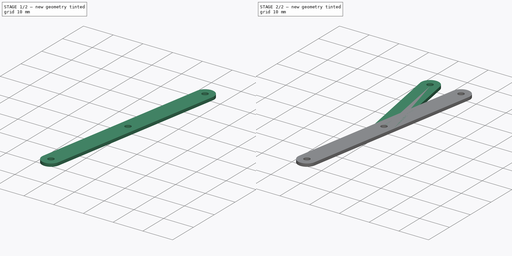
[diagram: build sequence overview — one tinted view per stage of 2, left to right]
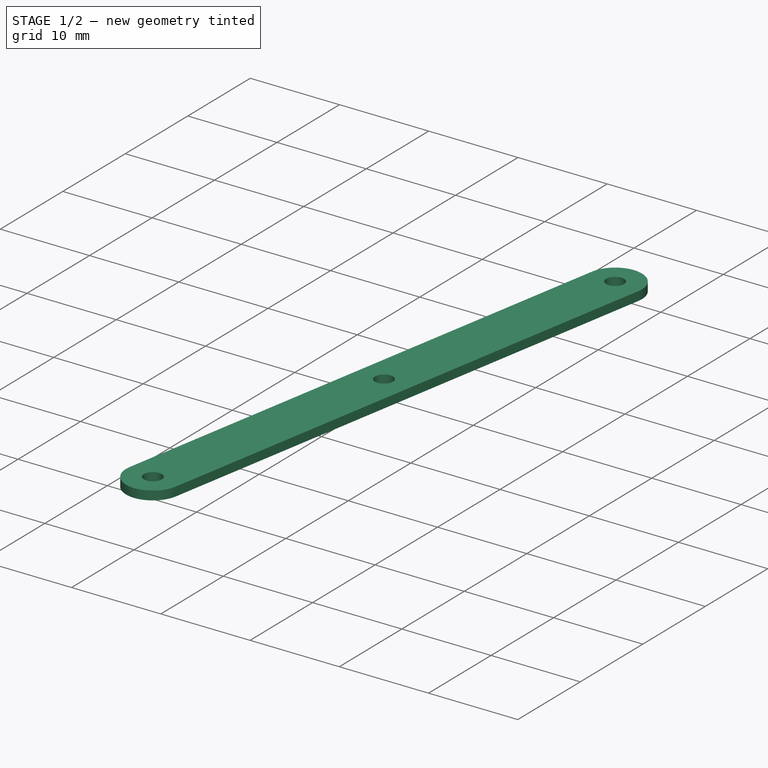
[diagram: stage 1 of 2 — iso view after this stage's code; geometry added in this stage tinted green]
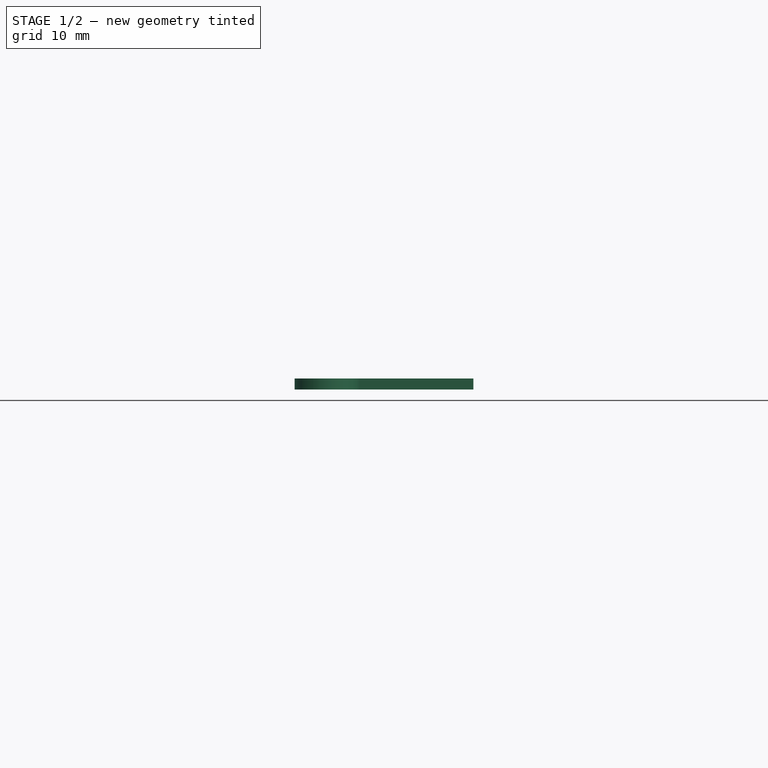
[diagram: stage 1 of 2 — front view after this stage's code; geometry added in this stage tinted green]
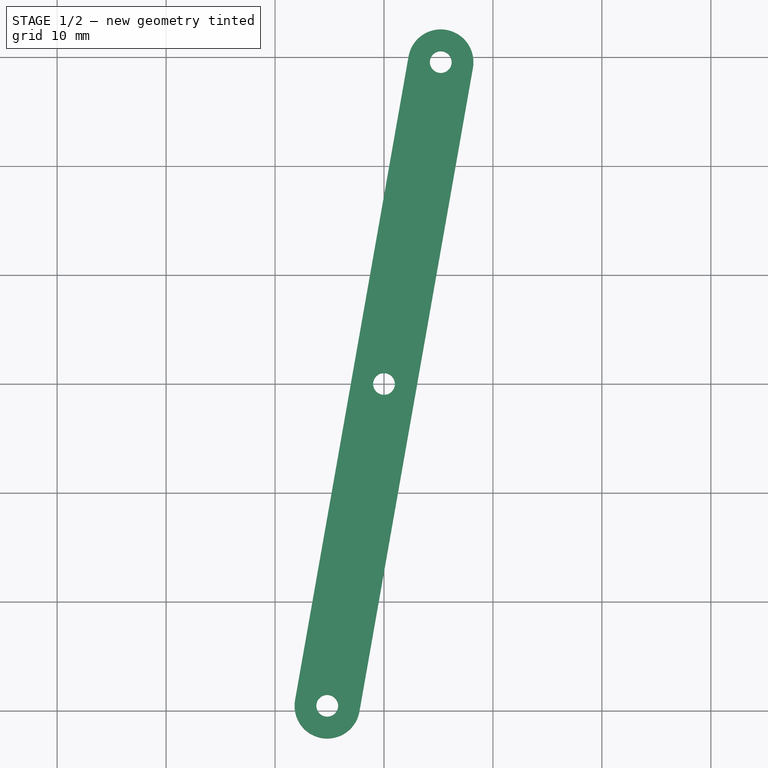
[diagram: stage 1 of 2 — top view after this stage's code; geometry added in this stage tinted green]
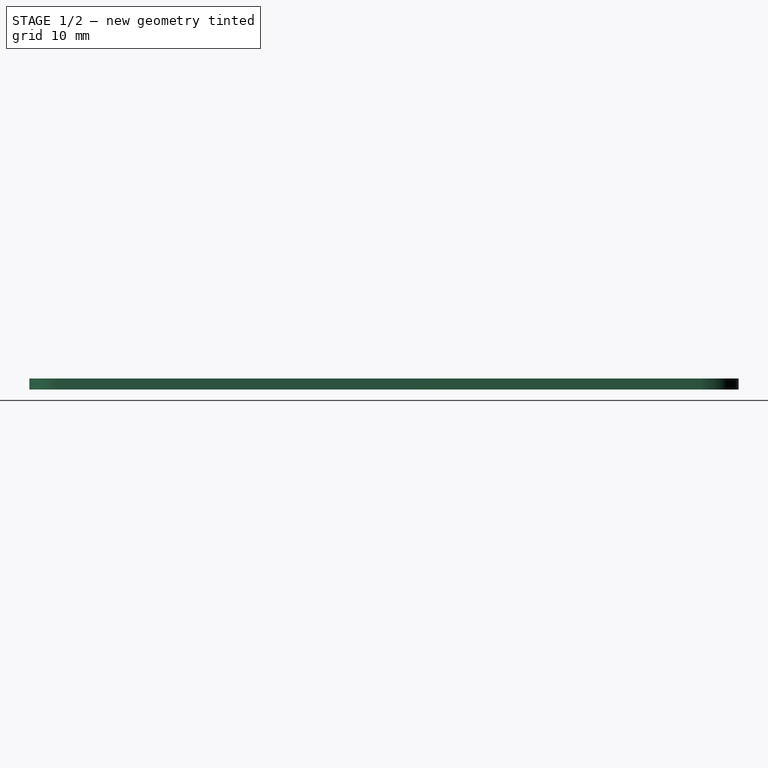
[diagram: stage 1 of 2 — right view after this stage's code; geometry added in this stage tinted green]
FCSTD DOCUMENT  (FreeCAD 0.19R24276 (Git))
Label: Assambly_file_3
License: All rights reserved
LicenseURL: http://en.wikipedia.org/wiki/All_rights_reserved
objects: PartDesign::CoordinateSystem×6, App::DocumentObjectGroup×3, Sketcher::SketchObject×2, PartDesign::Pad×2, PartDesign::Body×2, App::Link×2, App::FeaturePython×1, App::Part×1
note: 14 computed .brp shape members not serialized (recipe doc carries the construction recipe); baked Part::Feature solids carry a one-line shape summary decoded from their .brp

FEATURE [PartDesign::CoordinateSystem] LCS_Origin
  AttacherType = Attacher::AttachEngine3D
  MapMode = 2
  Support = -> [X_Axis]
FEATURE [App::FeaturePython] Variables  # WARN: FeaturePython — macro-defined, semantics opaque (R4)
  Type = App::PropertyContainer
  move = 38
FEATURE [App::DocumentObjectGroup] Constraints
FEATURE [App::DocumentObjectGroup] Configurations
FEATURE [Sketcher::SketchObject] Sketch
  FullyConstrained = true
  sketch-geometry (9):
    g0: ArcOfCircle CenterX=5.20945 CenterY=29.5442 CenterZ=0 NormalX=0 NormalY=0 NormalZ=1 AngleXU=0 Radius=3 StartAngle=6.10865 EndAngle=9.25025
    g1: ArcOfCircle CenterX=-5.20945 CenterY=-29.5442 CenterZ=0 NormalX=0 NormalY=0 NormalZ=1 AngleXU=0 Radius=3 StartAngle=2.96706 EndAngle=6.10865
    g2: LineSegment StartX=2.25502 StartY=30.0652 StartZ=0 EndX=-8.16387 EndY=-29.0233 EndZ=0
    g3: LineSegment StartX=8.16387 StartY=29.0233 StartZ=0 EndX=-2.25502 EndY=-30.0652 EndZ=0
    g4: LineSegment StartX=5.20945 StartY=29.5442 StartZ=0 EndX=-5.20945 EndY=-29.5442 EndZ=0
    g5: Circle CenterX=5.20945 CenterY=29.5442 CenterZ=0 NormalX=0 NormalY=0 NormalZ=1 AngleXU=0 Radius=1
    g6: Circle CenterX=-5.20945 CenterY=-29.5442 CenterZ=0 NormalX=0 NormalY=0 NormalZ=1 AngleXU=0 Radius=5e-16
    g7: Circle CenterX=0 CenterY=0 CenterZ=0 NormalX=0 NormalY=0 NormalZ=1 AngleXU=0 Radius=1
    g8: Circle CenterX=-5.20945 CenterY=-29.5442 CenterZ=0 NormalX=0 NormalY=0 NormalZ=1 AngleXU=0 Radius=1
  constraints (19):
    c: Tangent(g0,g3) = 1.5708
    c: Tangent(g0,g2) = -1.5708
    c: Tangent(g2,g1) = -1.5708
    c: Tangent(g3,g1) = 1.5708
    c: Equal(g0,g1)
    c: Coincident(g4,g0)
    c: Coincident(g4,g1)
    c: Coincident(g5,g0)
    c: Coincident(g6,g1)
    c: Tangent(g6,g4)
    c: Coincident(g8,g1)
    c: Symmetric(g0,g1,g7)
    c: Radius(g5) = 1
    c: Equal(g5,g7)
    c: Equal(g5,g8)
    c: Distance(g4) = 60
    c: Radius(g1) = 3
    c: Coincident(g7,g-1)
    c: Angle(g-2,g4) = -0.174533
FEATURE [PartDesign::Pad] Pad
  Direction = (1,1,1)
  Length = 1
  Length2 = 100
  Profile = -> Sketch
  Type = 0
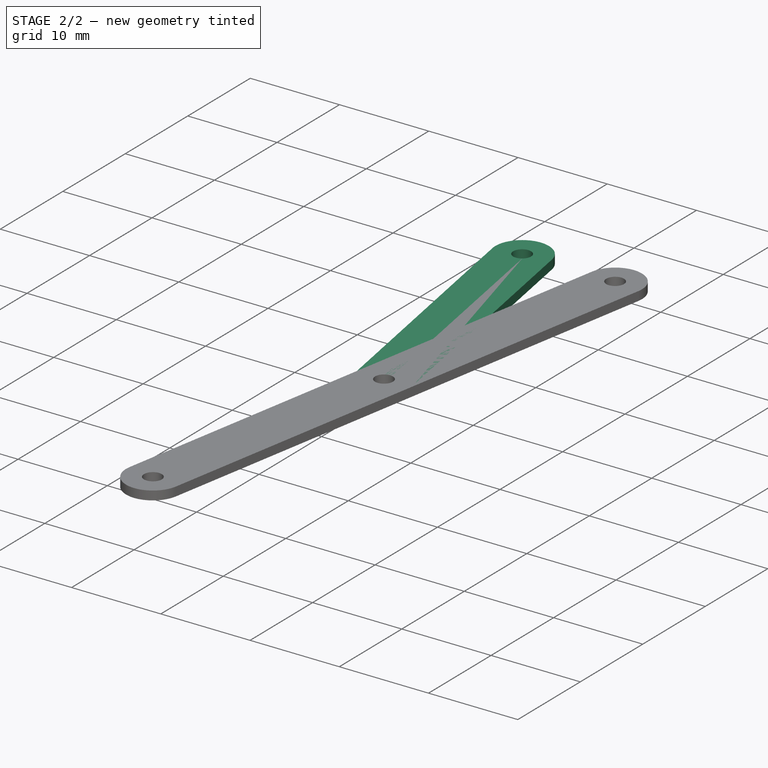
[diagram: stage 2 of 2 — iso view after this stage's code; geometry added in this stage tinted green]
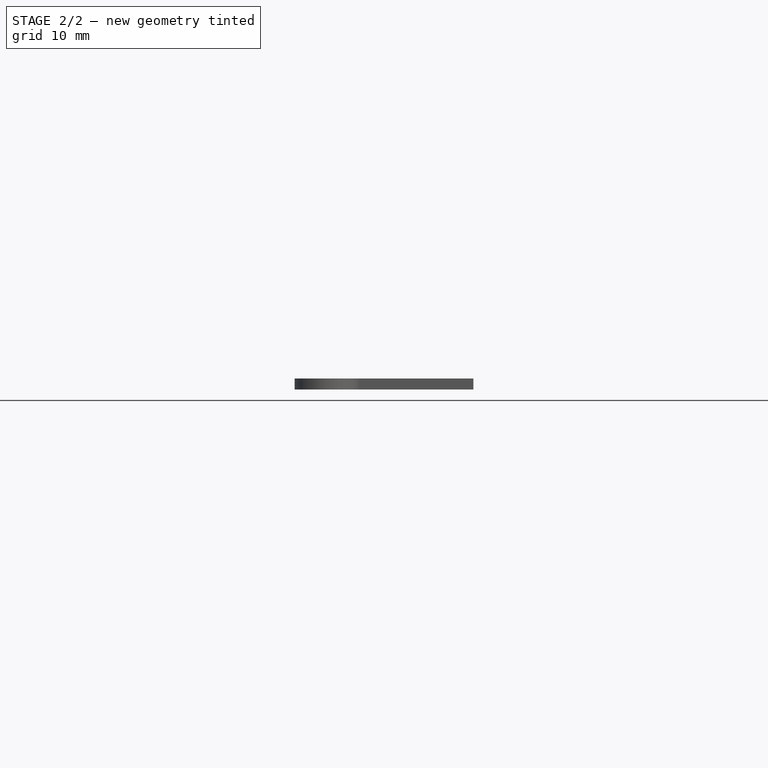
[diagram: stage 2 of 2 — front view after this stage's code; geometry added in this stage tinted green]
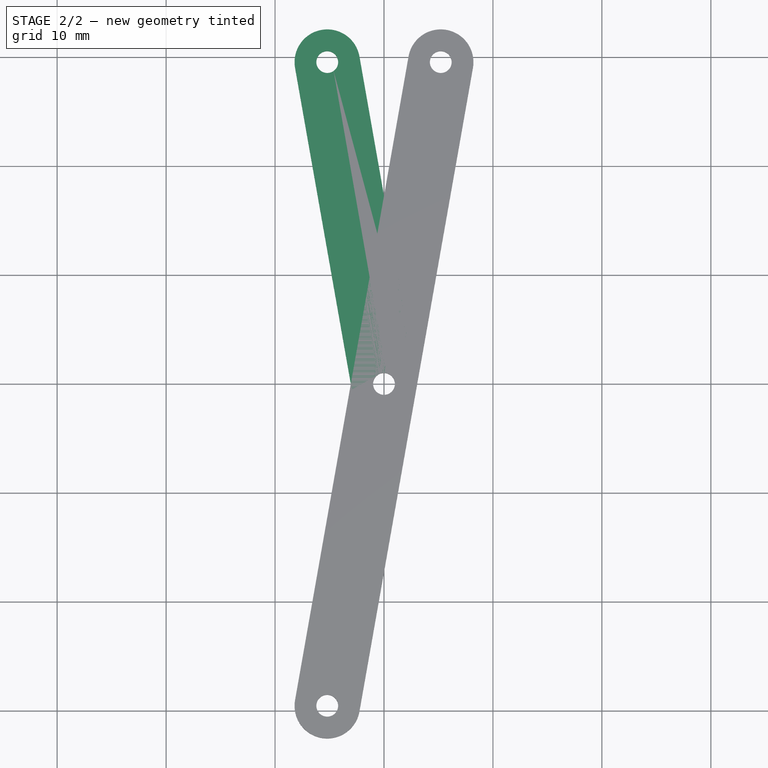
[diagram: stage 2 of 2 — top view after this stage's code; geometry added in this stage tinted green]
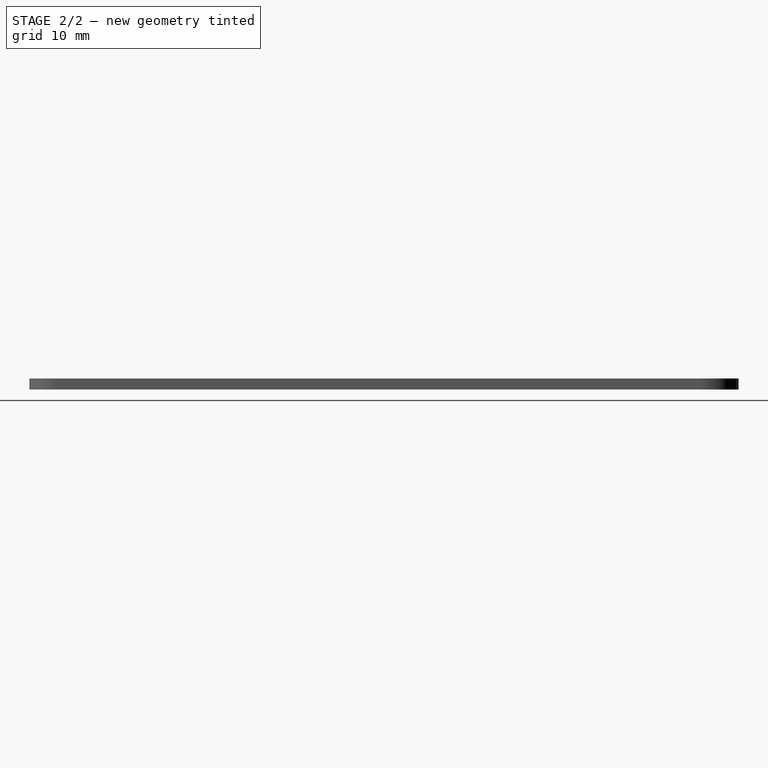
[diagram: stage 2 of 2 — right view after this stage's code; geometry added in this stage tinted green]
FEATURE [Sketcher::SketchObject] Sketch001
  FullyConstrained = true
  MapMode = 5
  Support = -> [XY_Plane002]
  sketch-geometry (7):
    g0: ArcOfCircle CenterX=-5.20945 CenterY=29.5442 CenterZ=0 NormalX=0 NormalY=0 NormalZ=1 AngleXU=0 Radius=3 StartAngle=0.174533 EndAngle=3.31613
    g1: ArcOfCircle CenterX=0 CenterY=0 CenterZ=0 NormalX=0 NormalY=0 NormalZ=1 AngleXU=0 Radius=3 StartAngle=3.31613 EndAngle=6.45772
    g2: LineSegment StartX=-8.16387 StartY=29.0233 StartZ=0 EndX=-2.95442 EndY=-0.520945 EndZ=0
    g3: LineSegment StartX=-2.25502 StartY=30.0652 StartZ=0 EndX=2.95442 EndY=0.520945 EndZ=0
    g4: Circle CenterX=-5.20945 CenterY=29.5442 CenterZ=0 NormalX=0 NormalY=0 NormalZ=1 AngleXU=0 Radius=1
    g5: Circle CenterX=0 CenterY=0 CenterZ=0 NormalX=0 NormalY=0 NormalZ=1 AngleXU=0 Radius=1
    g6: LineSegment StartX=-5.20945 StartY=29.5442 StartZ=0 EndX=0 EndY=0 EndZ=0
  constraints (15):
    c: Tangent(g0,g3) = 1.5708
    c: Tangent(g0,g2) = -1.5708
    c: Tangent(g2,g1) = -1.5708
    c: Tangent(g3,g1) = 1.5708
    c: Equal(g0,g1)
    c: Coincident(g4,g0)
    c: Coincident(g5,g1)
    c: Radius(g4) = 1
    c: Radius(g5) = 1
    c: Radius(g1) = 3
    c: Coincident(g1,g-1)
    c: Coincident(g6,g0)
    c: Coincident(g6,g1)
    c: Angle(g-2,g6) = 0.174533
    c: Distance(g6) = 30
FEATURE [PartDesign::Pad] Pad001
  Direction = (1,1,1)
  Length = 1
  Length2 = 100
  Profile = -> Sketch001
  Type = 0
FEATURE [PartDesign::CoordinateSystem] LCS_Center_end_1
  AttacherType = Attacher::AttachEngine3D
  MapMode = 11
  Placement = pos=(5.20945,29.5442,1) rot=(0,0,1;1.5708rad)
  Support = -> [Pad]
FEATURE [PartDesign::CoordinateSystem] LCS_Center_end_2
  AttacherType = Attacher::AttachEngine3D
  MapMode = 11
  Placement = pos=(-5.20945,-29.5442,1) rot=(0,0,1;1.5708rad)
  Support = -> [Pad]
FEATURE [PartDesign::CoordinateSystem] LCS_right_end_2
  AttacherType = Attacher::AttachEngine3D
  MapMode = 11
  Placement = pos=(-5.20945,29.5442,1) rot=(0,0,1;1.5708rad)
  Support = -> [Pad001]
FEATURE [PartDesign::CoordinateSystem] LCS_right_end_1
  AttacherType = Attacher::AttachEngine3D
  MapMode = 11
  Placement = pos=(0,0,1) rot=(0,0,1;1.5708rad)
  Support = -> [Pad]
FEATURE [PartDesign::Body] Body001  label="Right"
  Group = -> [Sketch001,Pad001,LCS_right_end_2,LCS_right_end_1]
  Origin = -> Origin002
  Tip = -> Pad001
FEATURE [PartDesign::CoordinateSystem] LCS_center_center
  AttacherType = Attacher::AttachEngine3D
  MapMode = 11
  Placement = pos=(0,0,1) rot=(0,0,1;1.5708rad)
  Support = -> [Pad]
FEATURE [PartDesign::Body] Body  label="Center_rotation_planka"
  Group = -> [Sketch,Pad,LCS_Center_end_1,LCS_Center_end_2,LCS_center_center]
  Origin = -> Origin001
  Tip = -> Pad
FEATURE [App::DocumentObjectGroup] Parts
  Group = -> [Body,Body001]
FEATURE [App::Link] Center_rotation_planka  label="Center_rotation_planka001"
  AttachedBy = #LCS_center_center
  AttachedTo = Parent Assembly#LCS_Origin
  LinkPlacement = pos=(0,0,-1) rot=(0,0,-1;1.5708rad)
  LinkedObject = -> Body
  Placement = pos=(0,0,-1) rot=(0,0,-1;1.5708rad)
  SolverId = Placement::ExpressionEngine
  expr: Placement = LCS_Origin.Placement * AttachmentOffset * LCS_center_center.Placement ^ -1
FEATURE [App::Link] Right  label="Right001"
  AttachedBy = #LCS_right_end_1
  AttachedTo = Center_rotation_planka#LCS_Center_end_1
  LinkPlacement = pos=(29.5442,-5.20945,-1) rot=(0,0,-1;0.663225rad)
  LinkedObject = -> Body001
  Placement = pos=(29.5442,-5.20945,-1) rot=(0,0,-1;0.663225rad)
  SolverId = Placement::ExpressionEngine
  expr: .Placement.Rotation.Angle = Variables.move
FEATURE [App::Part] Assembly
  AssemblyType = Part::Link
  Group = -> [LCS_Origin,Variables,Constraints,Configurations,Center_rotation_planka,Right]
  Origin = -> Origin
  Type = Assembly
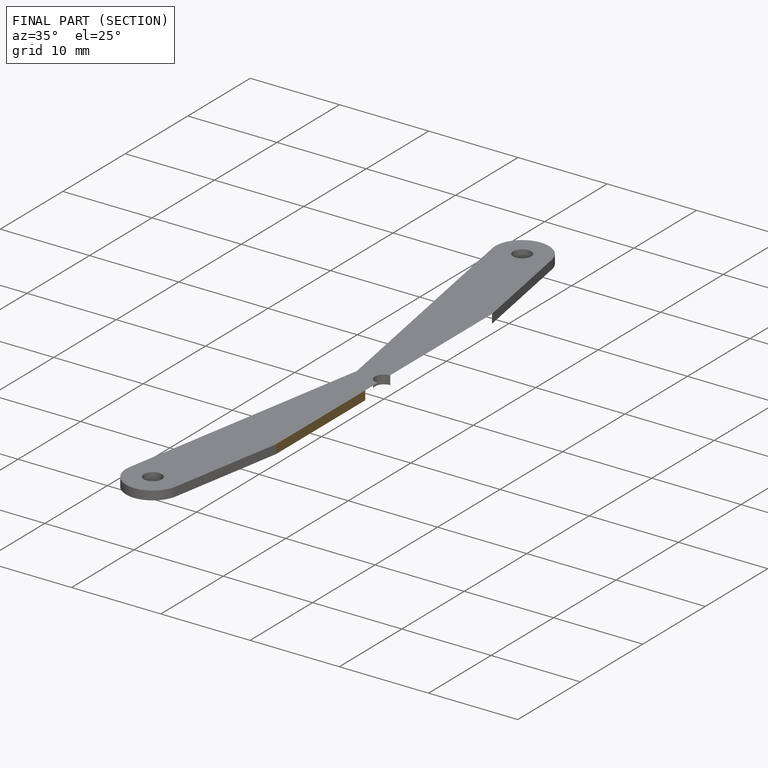
[diagram: finished part — half-section view (interior)]
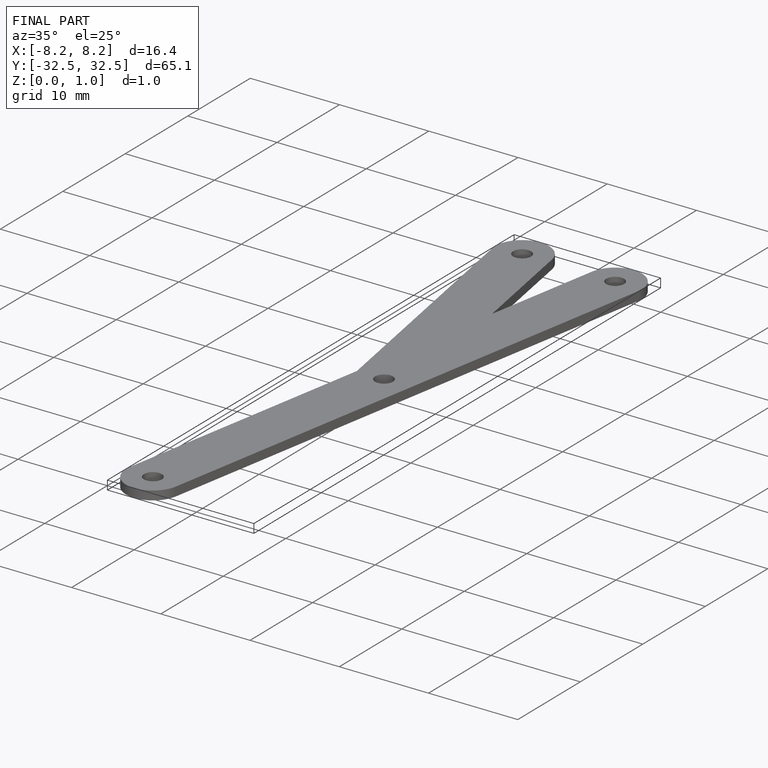
[diagram: finished part — iso view with bounding-box wireframe]
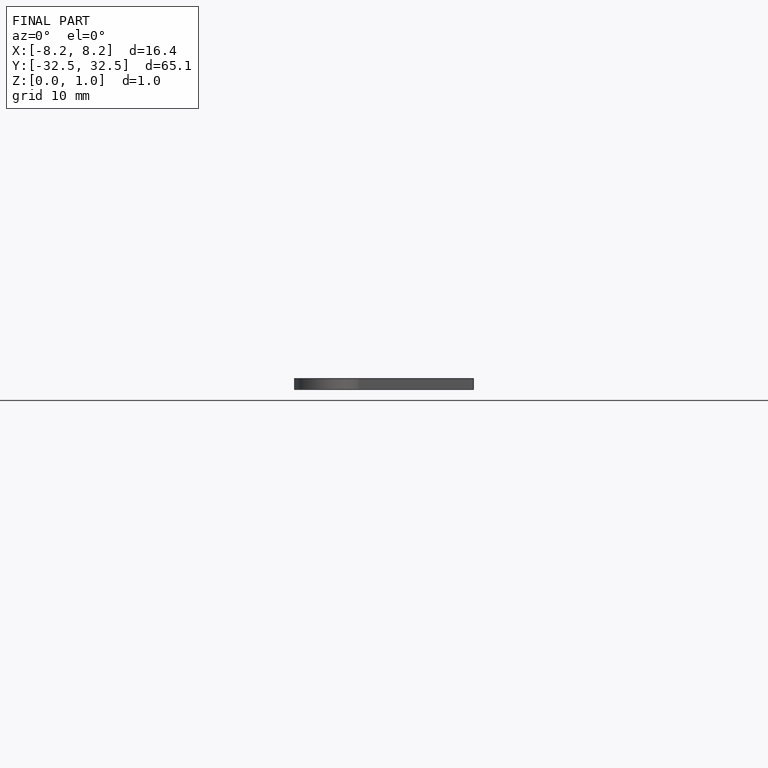
[diagram: finished part — front view with bounding-box wireframe]
